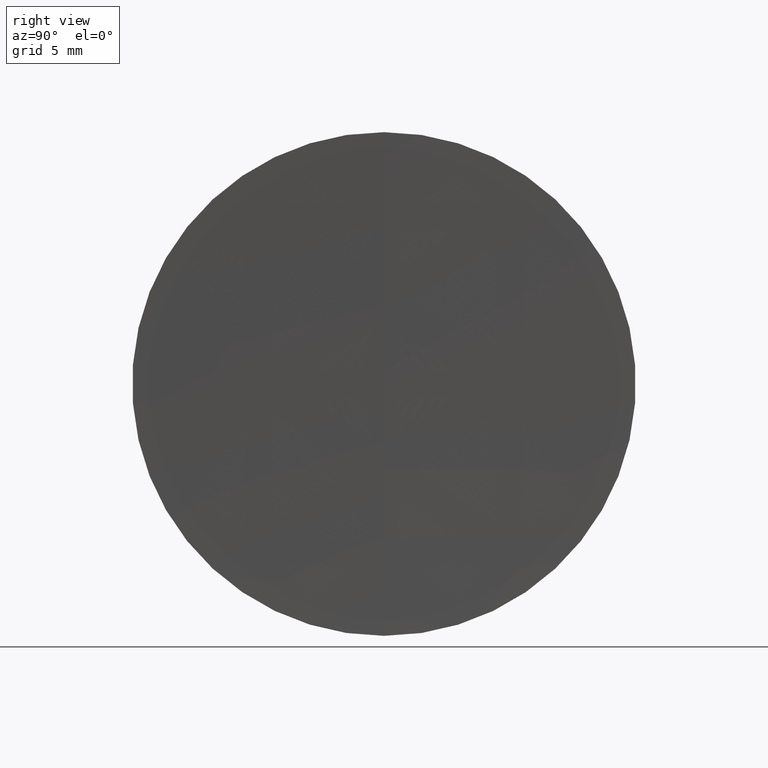
[diagram: clean part render]
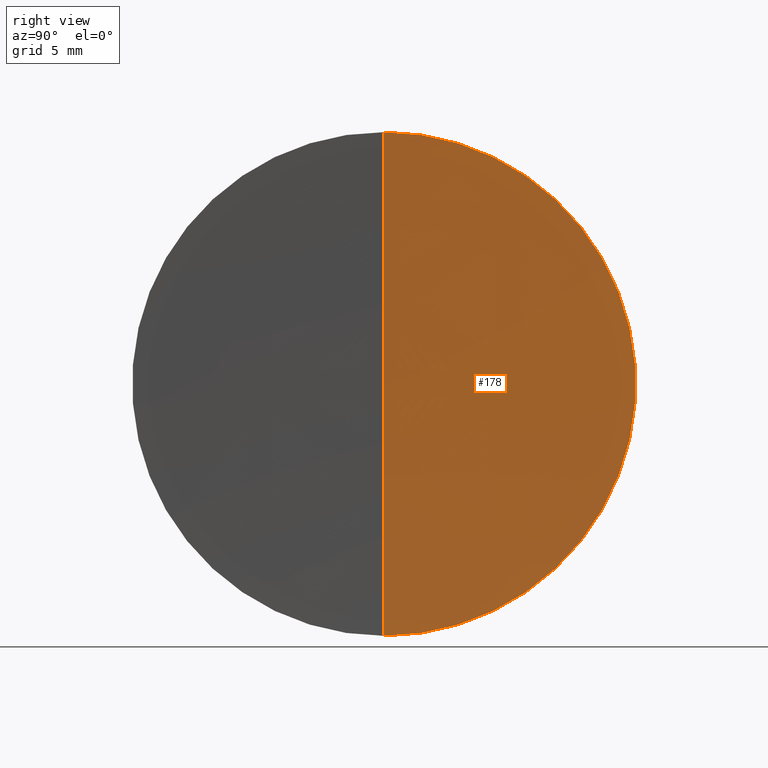
[diagram: same view with one face highlighted and labeled with its STEP entity id]
A machine part, right view. The second image highlights one B-rep face of the part: STEP entity #178.
In plain terms, the highlighted spherical surface has radius 489.8 mm.
Its self-contained STEP definition (entity closure, byte-faithful):
#3 = DIRECTION ( 'NONE',  ( -0.0000000000000000000, -1.000000000000000000, -0.0000000000000000000 ) ) ;
#9 = AXIS2_PLACEMENT_3D ( 'NONE', #70, #3, #194 ) ;
#17 = CIRCLE ( 'NONE', #82, 12.69999999999999900 ) ;
#19 = CARTESIAN_POINT ( 'NONE',  ( 263.2472495702499500, 0.0000000000000000000, -2.999160011111868400E-014 ) ) ;
#31 = VERTEX_POINT ( 'NONE', #57 ) ;
#43 = EDGE_CURVE ( 'NONE', #31, #86, #150, .T. ) ;
#57 = CARTESIAN_POINT ( 'NONE',  ( 263.4119260896008000, 0.0000000000000000000, 12.69999999999999900 ) ) ;
#66 = EDGE_CURVE ( 'NONE', #31, #111, #17, .T. ) ;
#70 = CARTESIAN_POINT ( 'NONE',  ( 753.0472495702500700, 0.0000000000000000000, 0.0000000000000000000 ) ) ;
#82 = AXIS2_PLACEMENT_3D ( 'NONE', #272, #217, #243 ) ;
#86 = VERTEX_POINT ( 'NONE', #19 ) ;
#105 = CARTESIAN_POINT ( 'NONE',  ( 263.4119260896008000, 1.555301434917138400E-015, -12.69999999999999900 ) ) ;
#111 = VERTEX_POINT ( 'NONE', #105 ) ;
#130 = CARTESIAN_POINT ( 'NONE',  ( 753.0472495702500700, 0.0000000000000000000, 0.0000000000000000000 ) ) ;
#142 = EDGE_CURVE ( 'NONE', #111, #86, #285, .T. ) ;
#143 = DIRECTION ( 'NONE',  ( 0.0000000000000000000, 0.0000000000000000000, 1.000000000000000000 ) ) ;
#150 = CIRCLE ( 'NONE', #205, 489.8000000000000700 ) ;
#166 = DIRECTION ( 'NONE',  ( 0.0000000000000000000, 1.000000000000000000, -0.0000000000000000000 ) ) ;
#177 = FACE_OUTER_BOUND ( 'NONE', #231, .T. ) ;
#178 = ADVANCED_FACE ( 'NONE', ( #177 ), #204, .F. ) ;
#182 = DIRECTION ( 'NONE',  ( 0.0000000000000000000, 1.224646799147353200E-016, -1.000000000000000000 ) ) ;
#188 = ORIENTED_EDGE ( 'NONE', *, *, #142, .F. ) ;
#194 = DIRECTION ( 'NONE',  ( 0.0000000000000000000, 0.0000000000000000000, -1.000000000000000000 ) ) ;
#204 = SPHERICAL_SURFACE ( 'NONE', #9, 489.8000000000000700 ) ;
#205 = AXIS2_PLACEMENT_3D ( 'NONE', #130, #336, #182 ) ;
#217 = DIRECTION ( 'NONE',  ( -1.000000000000000000, -0.0000000000000000000, -0.0000000000000000000 ) ) ;
#231 = EDGE_LOOP ( 'NONE', ( #306, #239, #188 ) ) ;
#239 = ORIENTED_EDGE ( 'NONE', *, *, #43, .T. ) ;
#243 = DIRECTION ( 'NONE',  ( 0.0000000000000000000, 0.0000000000000000000, 1.000000000000000000 ) ) ;
#272 = CARTESIAN_POINT ( 'NONE',  ( 263.4119260896008000, 0.0000000000000000000, 0.0000000000000000000 ) ) ;
#285 = CIRCLE ( 'NONE', #329, 489.8000000000000700 ) ;
#306 = ORIENTED_EDGE ( 'NONE', *, *, #66, .F. ) ;
#323 = CARTESIAN_POINT ( 'NONE',  ( 753.0472495702500700, 0.0000000000000000000, 0.0000000000000000000 ) ) ;
#329 = AXIS2_PLACEMENT_3D ( 'NONE', #323, #166, #143 ) ;
#336 = DIRECTION ( 'NONE',  ( 0.0000000000000000000, -1.000000000000000000, -1.224646799147353200E-016 ) ) ;